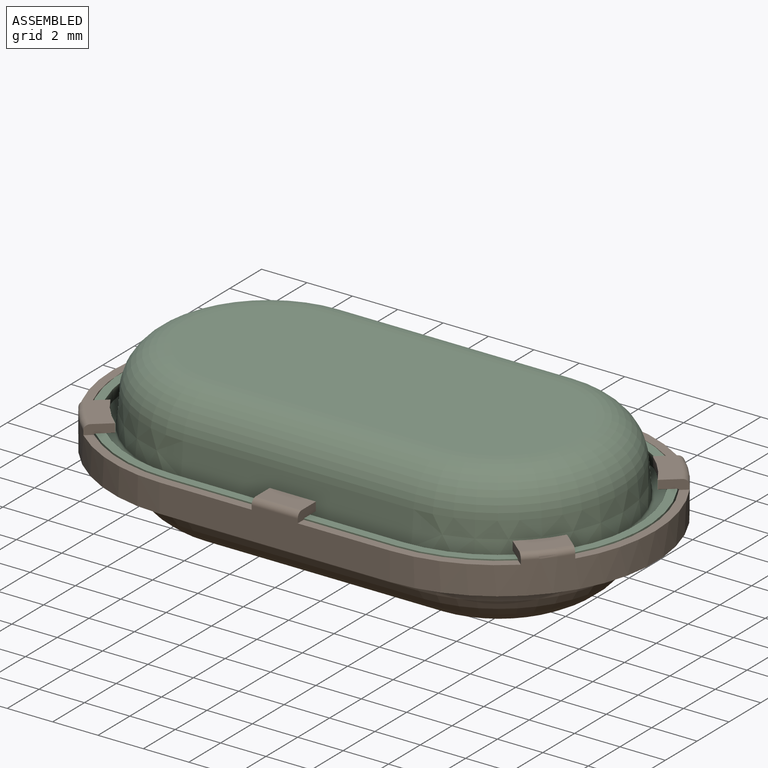
[diagram: assembled view]
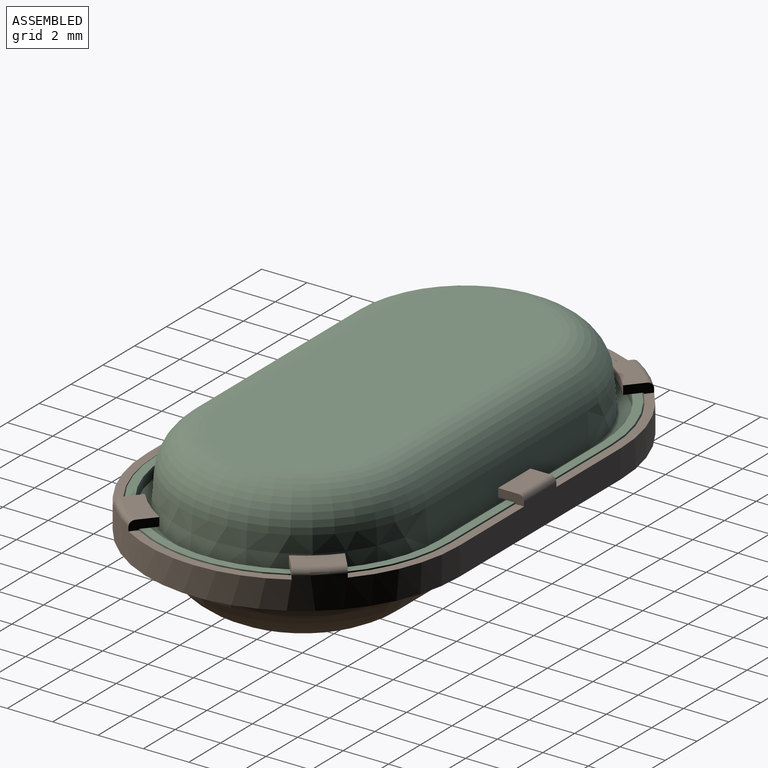
[diagram: assembled view, second angle]
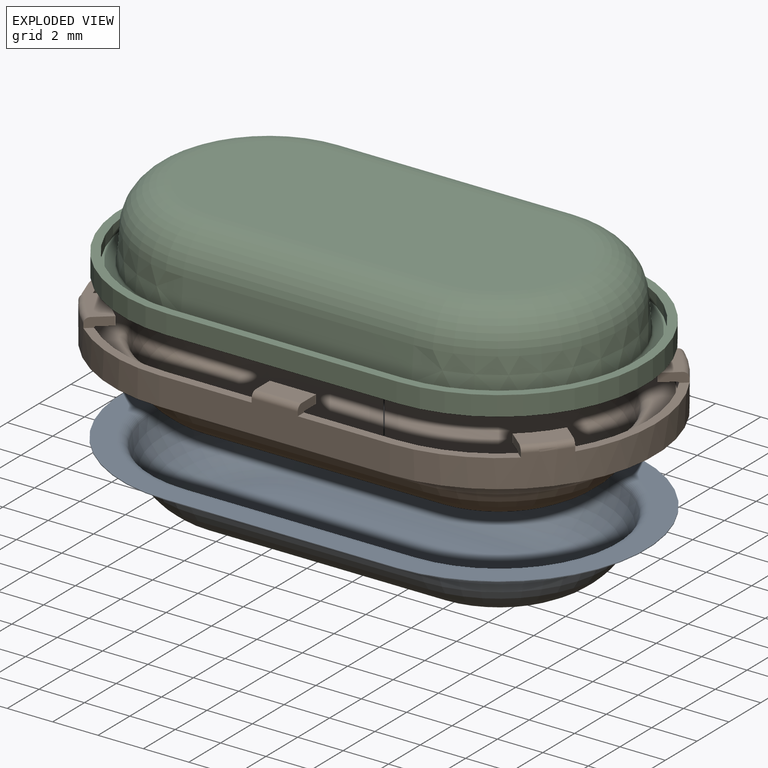
[diagram: exploded view]
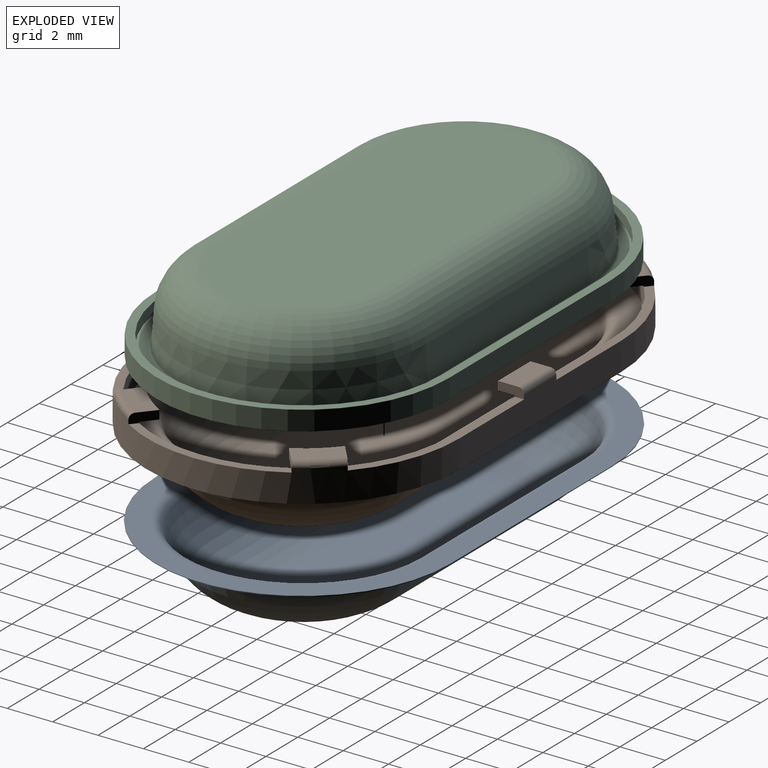
[diagram: exploded view, second angle]
ASSEMBLY  parts=3 mates=2
PART A: 32 faces, bbox 23.1x2.8x13 mm
  f0: plane 23.12x12.96mm, normal (0,1,0), area 56.6mm2, adj f10,f11,f12,f13,f28,f29,f30,f31
  f1: plane 14.17x4.01mm, normal (0,1,0), area 53.3mm2, adj f6,f7,f8,f9
  f2: plane 10.16x0.04mm, normal (0,0.24,0.97), area 0.4mm2, adj f3,f4,f9,f29
  f3: cone r=4.46mm half-angle=14deg, axis (0,1,0), area 0.6mm2, adj f2,f5,f8,f31
  f4: cone r=4.46mm half-angle=14deg, axis (0,1,0), area 0.6mm2, adj f2,f5,f7,f28
  f5: plane 10.16x0.04mm, normal (0,0.24,-0.97), area 0.4mm2, adj f3,f4,f6,f30
  f6: cylinder r=3.14mm len=10.16mm, axis (1,0,0), area 42.4mm2, adj f1,f5,f7,f8
  f7: torus R=2mm, axis (0,-1,0), area 49.8mm2, adj f1,f4,f6,f9
  f8: torus R=2mm, axis (0,-1,0), area 49.8mm2, adj f1,f3,f6,f9
  f9: cylinder r=3.14mm len=10.16mm, axis (-1,0,0), area 42.4mm2, adj f1,f2,f7,f8
  f10: cylinder r=6.48mm len=12.96mm, axis (0,1,0), area 0.6mm2, adj f0,f11,f13,f14
  f11: plane 10.16x0.03mm, normal (0,0,1), area 0.3mm2, adj f0,f10,f12,f14
  f12: cylinder r=6.48mm len=12.96mm, axis (0,1,0), area 0.6mm2, adj f0,f11,f13,f14
  f13: plane 10.16x0.03mm, normal (0,0,-1), area 0.3mm2, adj f0,f10,f12,f14
  f14: plane 23.12x12.96mm, normal (0,-1,0), area 56.6mm2, adj f10,f11,f12,f13,f24,f25,f26,f27
  f15: plane 14.17x4.01mm, normal (0,-1,0), area 53.3mm2, adj f16,f17,f18,f19
  f16: cylinder r=3.17mm len=10.16mm, axis (-1,0,0), area 42.8mm2, adj f15,f17,f18,f23
  f17: torus R=2mm, axis (0,-1,0), area 50.5mm2, adj f15,f16,f19,f22
  f18: torus R=2mm, axis (0,-1,0), area 50.5mm2, adj f15,f16,f19,f21
  f19: cylinder r=3.17mm len=10.16mm, axis (1,0,0), area 42.8mm2, adj f15,f17,f18,f20
  f20: plane 10.16x0.04mm, normal (0,-0.24,0.97), area 0.4mm2, adj f19,f21,f22,f26
  f21: cone r=4.48mm half-angle=14deg, axis (0,1,0), area 0.6mm2, adj f18,f20,f23,f27
  f22: cone r=4.48mm half-angle=14deg, axis (0,1,0), area 0.6mm2, adj f17,f20,f23,f24
  f23: plane 10.16x0.04mm, normal (0,-0.24,-0.97), area 0.4mm2, adj f16,f21,f22,f25
  f24: torus R=5.5mm, axis (0,1,0), area 9.2mm2, adj f14,f22,f25,f26
  f25: cylinder r=0.42mm len=10.16mm, axis (1,0,0), area 5.7mm2, adj f14,f23,f24,f27
  f26: cylinder r=0.42mm len=10.16mm, axis (-1,0,0), area 5.7mm2, adj f14,f20,f24,f27
  f27: torus R=5.5mm, axis (0,1,0), area 9.2mm2, adj f14,f21,f25,f26
  f28: torus R=5.5mm, axis (0,-1,0), area 9.8mm2, adj f0,f4,f29,f30
  f29: cylinder r=0.45mm len=10.16mm, axis (-1,0,0), area 6.1mm2, adj f0,f2,f28,f31
  f30: cylinder r=0.45mm len=10.16mm, axis (1,0,0), area 6.1mm2, adj f0,f5,f28,f31
  f31: torus R=5.5mm, axis (0,-1,0), area 9.8mm2, adj f0,f3,f29,f30
PART B: 76 faces, bbox 23.9x13.8x4.5 mm
  f0: cylinder r=6.88mm len=13.77mm, axis (0,0,1), area 27.6mm2, adj f1,f3,f4,f5,f36,f67,f69,f70
  f1: plane 10.16x1.42mm, normal (0,1,0), area 13mm2, adj f0,f2,f36,f37,f64,f65,f73,f74
  f2: cylinder r=6.88mm len=13.77mm, axis (0,0,1), area 27.6mm2, adj f1,f3,f10,f11,f36,f58,f59,f60
  f3: plane 10.16x1.42mm, normal (0,-1,0), area 13mm2, adj f0,f2,f14,f36,f61,f62,f67,f68
  f4: torus R=6.63mm, axis (0,0,1), area 0.8mm2, adj f0,f16,f72,f75
  f5: torus R=6.63mm, axis (0,0,1), area 0.8mm2, adj f0,f17,f69,f71
  f6: cylinder r=5.74mm len=1.56mm, axis (0,0,1), area 0.8mm2, adj f16,f22,f72,f75
  f7: cylinder r=5.74mm len=1.56mm, axis (0,0,1), area 0.8mm2, adj f17,f23,f69,f71
  f8: torus R=6.45mm, axis (0,0,1), area 0.2mm2, adj f22,f55,f72,f75
  f9: torus R=6.45mm, axis (0,0,1), area 0.2mm2, adj f23,f55,f69,f71
  f10: torus R=6.63mm, axis (0,0,1), area 0.8mm2, adj f2,f15,f60,f66
  f11: torus R=6.63mm, axis (0,0,1), area 0.8mm2, adj f2,f42,f59,f63
  f12: cylinder r=5.74mm len=1.56mm, axis (0,0,1), area 0.8mm2, adj f15,f21,f60,f66
  f13: torus R=6.45mm, axis (0,0,1), area 0.2mm2, adj f21,f57,f60,f66
  f14: cylinder r=0.25mm len=2.03mm, axis (1,0,0), area 0.8mm2, adj f3,f18,f62,f68
  f15: plane 2.14x2mm, normal (0,0,1), area 1.8mm2, adj f10,f12,f60,f66
  f16: plane 2.14x2mm, normal (0,0,1), area 1.8mm2, adj f4,f6,f72,f75
  f17: plane 2.14x2mm, normal (0,0,1), area 1.8mm2, adj f5,f7,f69,f71
  f18: plane 2.03x0.89mm, normal (0,0,1), area 1.8mm2, adj f14,f20,f62,f68
  f19: plane 2.03x0.89mm, normal (0,0,1), area 1.8mm2, adj f37,f38,f65,f74
  f20: plane 2.03x0.38mm, normal (0,1,0), area 0.8mm2, adj f18,f24,f62,f68
  f21: plane 2.02x1.86mm, normal (0,0,-1), area 1.5mm2, adj f12,f13,f60,f66
  f22: plane 2.02x1.86mm, normal (0,0,-1), area 1.5mm2, adj f6,f8,f72,f75
  f23: plane 2.02x1.86mm, normal (0,0,-1), area 1.5mm2, adj f7,f9,f69,f71
  f24: plane 2.03x0.71mm, normal (0,0,-1), area 1.4mm2, adj f20,f26,f62,f68
  f25: plane 2.03x0.71mm, normal (0,0,-1), area 1.4mm2, adj f38,f39,f65,f74
  f26: cylinder r=0.05mm len=2.03mm, axis (1,0,0), area 0.2mm2, adj f24,f56,f62,f68
  f27: torus R=2.01mm, axis (0,0,1), area 60.2mm2, adj f28,f29,f33,f34
  f28: torus R=5.56mm, axis (0,0,1), area 2.3mm2, adj f27,f30,f35,f36
  f29: cylinder r=3.56mm len=10.16mm, axis (-1,0,0), area 48.1mm2, adj f27,f30,f31,f33
  f30: cylinder r=0.1mm len=10.16mm, axis (-1,0,0), area 1.4mm2, adj f28,f29,f32,f36
  f31: torus R=2.01mm, axis (0,0,1), area 60.2mm2, adj f29,f32,f33,f34
  f32: torus R=5.56mm, axis (0,0,1), area 2.3mm2, adj f30,f31,f35,f36
  f33: plane 14.18x4.02mm, normal (0,0,-1), area 53.5mm2, adj f27,f29,f31,f34
  f34: cylinder r=3.56mm len=10.16mm, axis (1,0,0), area 48.1mm2, adj f27,f31,f33,f35
  f35: cylinder r=0.1mm len=10.16mm, axis (1,0,0), area 1.4mm2, adj f28,f32,f34,f36
  f36: plane 23.93x13.77mm, normal (0,0,-1), area 78.5mm2, adj f0,f1,f2,f3,f28,f30,f32,f35
  f37: cylinder r=0.25mm len=2.03mm, axis (-1,0,0), area 0.8mm2, adj f1,f19,f65,f74
  f38: plane 2.03x0.38mm, normal (0,-1,0), area 0.8mm2, adj f19,f25,f65,f74
  f39: cylinder r=0.05mm len=2.03mm, axis (-1,0,0), area 0.2mm2, adj f25,f54,f65,f74
  f40: cylinder r=5.74mm len=1.56mm, axis (0,0,1), area 0.8mm2, adj f42,f43,f59,f63
  f41: torus R=6.45mm, axis (0,0,1), area 0.2mm2, adj f43,f57,f59,f63
  f42: plane 2.14x2mm, normal (0,0,1), area 1.8mm2, adj f11,f40,f59,f63
  f43: plane 2.02x1.86mm, normal (0,0,-1), area 1.5mm2, adj f40,f41,f59,f63
  f44: plane 14.18x4.02mm, normal (0,0,1), area 53.5mm2, adj f45,f46,f47,f48
  f45: cylinder r=3.17mm len=10.16mm, axis (-1,0,0), area 43mm2, adj f44,f46,f48,f49
  f46: torus R=2.01mm, axis (0,0,1), area 50.9mm2, adj f44,f45,f47,f50
  f47: cylinder r=3.17mm len=10.16mm, axis (1,0,0), area 43mm2, adj f44,f46,f48,f51
  f48: torus R=2.01mm, axis (0,0,1), area 50.9mm2, adj f44,f45,f47,f52
  f49: cylinder r=0.48mm len=10.16mm, axis (-1,0,0), area 6.5mm2, adj f45,f50,f52,f53
  f50: torus R=5.56mm, axis (0,0,1), area 10.7mm2, adj f46,f49,f51,f53
  f51: cylinder r=0.48mm len=10.16mm, axis (1,0,0), area 6.5mm2, adj f47,f50,f52,f53
  f52: torus R=5.56mm, axis (0,0,1), area 10.7mm2, adj f48,f49,f51,f53
  f53: plane 23.16x13.01mm, normal (0,0,1), area 54.7mm2, adj f49,f50,f51,f52,f54,f55,f56,f57
  f54: plane 10.16x0.86mm, normal (0,-1,0), area 8.8mm2, adj f39,f53,f55,f57,f64,f73
  f55: cylinder r=6.5mm len=13.01mm, axis (0,0,1), area 17.6mm2, adj f8,f9,f53,f54,f56,f67,f70,f73
  f56: plane 10.16x0.86mm, normal (0,1,0), area 8.8mm2, adj f26,f53,f55,f57,f61,f67
  f57: cylinder r=6.5mm len=13.01mm, axis (0,0,1), area 17.6mm2, adj f13,f41,f53,f54,f56,f58,f61,f64
  f58: plane 7.2x1.31mm, normal (0,0,1), area 2.8mm2, adj f2,f57,f59,f60
  f59: plane 0.9x0.76mm, normal (0.64,0.77,0), area 0.4mm2, adj f2,f11,f40,f41,f42,f43,f58
  f60: plane 0.9x0.76mm, normal (0.64,-0.77,0), area 0.4mm2, adj f2,f10,f12,f13,f15,f21,f58
  f61: plane 8.63x1.98mm, normal (0,0,1), area 3.4mm2, adj f2,f3,f56,f57,f62,f63
  f62: plane 1.14x0.43mm, normal (1,0,0), area 0.4mm2, adj f3,f14,f18,f20,f24,f26,f61
  f63: plane 0.9x0.76mm, normal (-0.64,-0.77,0), area 0.4mm2, adj f2,f11,f40,f41,f42,f43,f61
  f64: plane 8.63x1.98mm, normal (0,0,1), area 3.4mm2, adj f1,f2,f54,f57,f65,f66
  f65: plane 1.14x0.43mm, normal (1,0,0), area 0.4mm2, adj f1,f19,f25,f37,f38,f39,f64
  f66: plane 0.9x0.76mm, normal (-0.64,0.77,0), area 0.4mm2, adj f2,f10,f12,f13,f15,f21,f64
  f67: plane 8.63x1.98mm, normal (0,0,1), area 3.4mm2, adj f0,f3,f55,f56,f68,f69
  f68: plane 1.14x0.43mm, normal (-1,0,0), area 0.4mm2, adj f3,f14,f18,f20,f24,f26,f67
  f69: plane 0.9x0.76mm, normal (0.64,-0.77,0), area 0.4mm2, adj f0,f5,f7,f9,f17,f23,f67
  f70: plane 7.2x1.31mm, normal (0,0,1), area 2.8mm2, adj f0,f55,f71,f72
  f71: plane 0.9x0.76mm, normal (-0.64,0.77,0), area 0.4mm2, adj f0,f5,f7,f9,f17,f23,f70
  f72: plane 0.9x0.76mm, normal (-0.64,-0.77,0), area 0.4mm2, adj f0,f4,f6,f8,f16,f22,f70
  f73: plane 8.63x1.98mm, normal (0,0,1), area 3.4mm2, adj f0,f1,f54,f55,f74,f75
  f74: plane 1.14x0.43mm, normal (-1,0,0), area 0.4mm2, adj f1,f19,f25,f37,f38,f39,f73
  f75: plane 0.9x0.76mm, normal (0.64,0.77,0), area 0.4mm2, adj f0,f4,f6,f8,f16,f22,f73
PART C: 37 faces, bbox 23.1x3.6x12.9 mm
  f0: plane 22.3x12.14mm, normal (0,-1,0), area 25.5mm2, adj f17,f18,f19,f26,f27,f28,f29,f36
  f1: plane 23.06x12.9mm, normal (0,1,0), area 48.2mm2, adj f20,f21,f22,f23,f24,f25,f30,f31
  f2: plane 17.21x7.05mm, normal (0,1,0), area 110.6mm2, adj f8,f9,f10,f33
  f3: plane 17.21x7.05mm, normal (0,-1,0), area 110.6mm2, adj f11,f12,f13,f34
  f4: plane 23.06x12.9mm, normal (0,-1,0), area 22.7mm2, adj f23,f24,f25,f26,f27,f28,f29,f30
  f5: plane 10.16x1.44mm, normal (0,0.09,1), area 14.7mm2, adj f6,f10,f20,f32
  f6: cone r=4.9mm half-angle=5deg, axis (0,1,0), area 23.1mm2, adj f5,f7,f9,f21
  f7: plane 10.16x1.44mm, normal (0,0.09,-1), area 14.7mm2, adj f6,f8,f22,f32
  f8: cylinder r=1.5mm len=10.16mm, axis (1,0,0), area 22.6mm2, adj f2,f7,f9,f33
  f9: torus R=3.52mm, axis (0,-1,0), area 31.1mm2, adj f2,f6,f8,f10
  f10: cylinder r=1.5mm len=10.16mm, axis (-1,0,0), area 22.6mm2, adj f2,f5,f9,f33
  f11: cylinder r=1.88mm len=10.16mm, axis (-1,0,0), area 28.4mm2, adj f3,f12,f16,f34
  f12: torus R=3.52mm, axis (0,-1,0), area 41mm2, adj f3,f11,f13,f15
  f13: cylinder r=1.88mm len=10.16mm, axis (1,0,0), area 28.4mm2, adj f3,f12,f14,f34
  f14: plane 10.16x1.44mm, normal (0,-0.09,1), area 14.7mm2, adj f13,f15,f18,f35
  f15: cone r=5.28mm half-angle=5deg, axis (0,1,0), area 24.8mm2, adj f12,f14,f16,f17
  f16: plane 10.16x1.44mm, normal (0,-0.09,-1), area 14.7mm2, adj f11,f15,f19,f35
  f17: torus R=5.62mm, axis (0,1,0), area 2.6mm2, adj f0,f15,f18,f19
  f18: cylinder r=0.1mm len=10.16mm, axis (-1,0,0), area 1.5mm2, adj f0,f14,f17,f36
  f19: cylinder r=0.1mm len=10.16mm, axis (1,0,0), area 1.5mm2, adj f0,f16,f17,f36
  f20: cylinder r=0.48mm len=10.16mm, axis (-1,0,0), area 7.3mm2, adj f1,f5,f21,f31
  f21: torus R=5.62mm, axis (0,-1,0), area 12mm2, adj f1,f6,f20,f22
  f22: cylinder r=0.48mm len=10.16mm, axis (1,0,0), area 7.3mm2, adj f1,f7,f21,f31
  f23: cylinder r=6.45mm len=12.9mm, axis (0,1,0), area 17.5mm2, adj f1,f4,f24,f25
  f24: plane 10.16x0.86mm, normal (0,0,1), area 8.8mm2, adj f1,f4,f23,f30
  f25: plane 10.16x0.86mm, normal (0,0,-1), area 8.8mm2, adj f1,f4,f23,f30
  f26: plane 10.16x0.48mm, normal (0,0,1), area 4.9mm2, adj f0,f4,f27,f29
  f27: cylinder r=6.07mm len=12.14mm, axis (0,1,0), area 9.2mm2, adj f0,f4,f26,f28
  f28: plane 10.16x0.48mm, normal (0,0,-1), area 4.9mm2, adj f0,f4,f27,f29
  f29: cylinder r=6.07mm len=12.14mm, axis (0,-1,0), area 9.2mm2, adj f0,f4,f26,f28
  f30: cylinder r=6.45mm len=12.9mm, axis (0,-1,0), area 17.5mm2, adj f1,f4,f24,f25
  f31: torus R=5.62mm, axis (0,-1,0), area 12mm2, adj f1,f20,f22,f32
  f32: cone r=5.14mm half-angle=5deg, axis (0,1,0), area 23.1mm2, adj f5,f7,f31,f33
  f33: torus R=3.52mm, axis (0,-1,0), area 31.1mm2, adj f2,f8,f10,f32
  f34: torus R=3.52mm, axis (0,-1,0), area 41mm2, adj f3,f11,f13,f35
  f35: cone r=5.4mm half-angle=5deg, axis (0,1,0), area 24.8mm2, adj f14,f16,f34,f36
  f36: torus R=5.62mm, axis (0,-1,0), area 2.6mm2, adj f0,f18,f19,f35
PLACE A rot(axis=(1,0,0),90deg) t=(-4.88,0,-8.71)mm
PLACE B at identity
PLACE C rot(axis=(-1,0,0),90deg) t=(-4.88,0,9.53)mm
MATE fastened C.f1 <-> A.f0  axis (0,0,-1) through (0,0,0.41)mm
MATE fastened A.f14 <-> B.f53  axis (0,0,-1) through (0,0,0.38)mm
